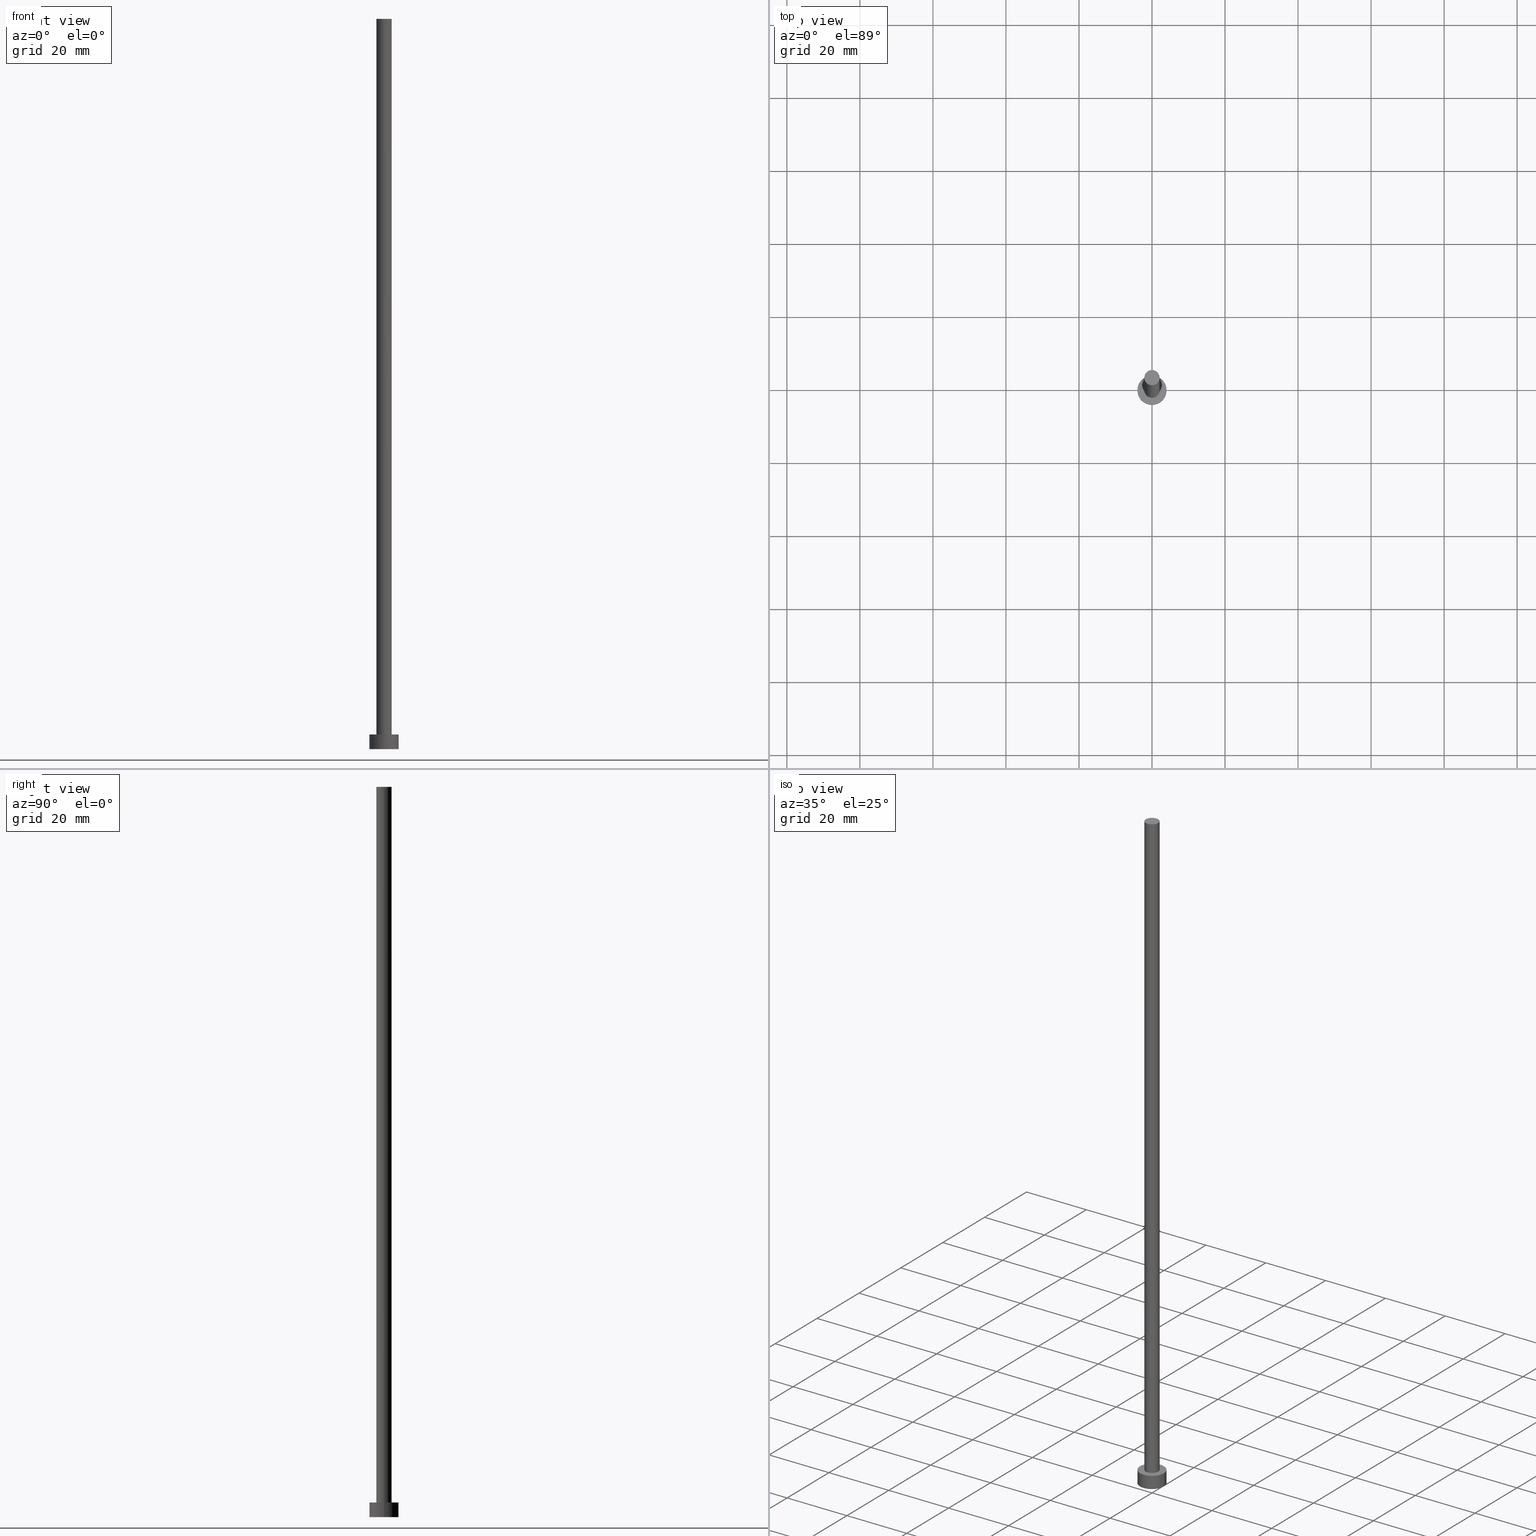
[diagram: canonical four-view strip — front | top / right | iso, engineering-drawing reading convention]
A machine part, canonical four-view strip (front | top / right | iso — engineering-drawing reading convention). The complete STEP part file that produces these views, byte-faithful:
ISO-10303-21;
HEADER;
FILE_DESCRIPTION (( 'STEP AP203' ),
    '1' );
FILE_NAME ('45b1.STEP',
    '2023-02-13T16:34:34',
    ( '' ),
    ( '' ),
    'SwSTEP 2.0',
    'SolidWorks 2019',
    '' );
FILE_SCHEMA (( 'CONFIG_CONTROL_DESIGN' ));
ENDSEC;

DATA;
#1 = ADVANCED_FACE ( 'NONE', ( #48 ), #65, .T. ) ;
#2 = ORIENTED_EDGE ( 'NONE', *, *, #150, .F. ) ;
#3 = PERSON_AND_ORGANIZATION ( #215, #194 ) ;
#4 = UNCERTAINTY_MEASURE_WITH_UNIT (LENGTH_MEASURE( 1.000000000000000082E-05 ), #96, 'distance_accuracy_value', 'NONE');
#5 = CARTESIAN_POINT ( 'NONE',  ( 2.100000000000000089, 2.571758278209441957E-16, 4.000000000000000000 ) ) ;
#6 = DIRECTION ( 'NONE',  ( -0.000000000000000000, -0.000000000000000000, -1.000000000000000000 ) ) ;
#7 = APPLICATION_PROTOCOL_DEFINITION ( 'international standard', 'config_control_design', 1994, #124 ) ;
#8 = CARTESIAN_POINT ( 'NONE',  ( 0.000000000000000000, 0.000000000000000000, 4.000000000000000000 ) ) ;
#9 = CIRCLE ( 'NONE', #240, 4.000000000000000000 ) ;
#10 = DIRECTION ( 'NONE',  ( 0.000000000000000000, 0.000000000000000000, 1.000000000000000000 ) ) ;
#11 = AXIS2_PLACEMENT_3D ( 'NONE', #255, #116, #74 ) ;
#12 = CARTESIAN_POINT ( 'NONE',  ( 0.000000000000000000, 0.000000000000000000, 4.000000000000000000 ) ) ;
#13 = EDGE_LOOP ( 'NONE', ( #17, #223 ) ) ;
#14 = CC_DESIGN_APPROVAL ( #211, ( #103 ) ) ;
#15 = SECURITY_CLASSIFICATION_LEVEL ( 'unclassified' ) ;
#16 = ADVANCED_FACE ( 'NONE', ( #66, #82 ), #192, .T. ) ;
#17 = ORIENTED_EDGE ( 'NONE', *, *, #227, .T. ) ;
#18 = APPROVAL_STATUS ( 'not_yet_approved' ) ;
#19 = ORIENTED_EDGE ( 'NONE', *, *, #156, .T. ) ;
#20 = DIRECTION ( 'NONE',  ( 1.000000000000000000, 0.000000000000000000, 0.000000000000000000 ) ) ;
#21 = ORIENTED_EDGE ( 'NONE', *, *, #97, .T. ) ;
#22 = DIRECTION ( 'NONE',  ( 0.000000000000000000, 0.000000000000000000, 1.000000000000000000 ) ) ;
#23 = ORIENTED_EDGE ( 'NONE', *, *, #87, .T. ) ;
#24 = DIRECTION ( 'NONE',  ( 0.000000000000000000, 0.000000000000000000, 1.000000000000000000 ) ) ;
#25 = APPROVAL_PERSON_ORGANIZATION ( #69, #245, #155 ) ;
#26 = EDGE_CURVE ( 'NONE', #118, #95, #142, .T. ) ;
#27 = CARTESIAN_POINT ( 'NONE',  ( -2.100000000000000089, 0.000000000000000000, 200.0000000000000000 ) ) ;
#28 = ADVANCED_BREP_SHAPE_REPRESENTATION ( '45b1', ( #217, #64 ), #54 ) ;
#29 = ORIENTED_EDGE ( 'NONE', *, *, #227, .F. ) ;
#30 = CARTESIAN_POINT ( 'NONE',  ( 0.000000000000000000, 0.000000000000000000, 0.000000000000000000 ) ) ;
#31 = EDGE_CURVE ( 'NONE', #58, #253, #131, .T. ) ;
#32 = DIRECTION ( 'NONE',  ( 0.000000000000000000, 0.000000000000000000, 1.000000000000000000 ) ) ;
#33 = CARTESIAN_POINT ( 'NONE',  ( -4.000000000000000000, 0.000000000000000000, 4.000000000000000000 ) ) ;
#34 = CARTESIAN_POINT ( 'NONE',  ( 0.000000000000000000, 0.000000000000000000, 200.0000000000000000 ) ) ;
#35 = ADVANCED_FACE ( 'NONE', ( #181 ), #52, .T. ) ;
#36 = VERTEX_POINT ( 'NONE', #126 ) ;
#37 = CIRCLE ( 'NONE', #90, 2.100000000000000089 ) ;
#38 = CC_DESIGN_PERSON_AND_ORGANIZATION_ASSIGNMENT ( #68, #158, ( #160 ) ) ;
#39 = CARTESIAN_POINT ( 'NONE',  ( -4.000000000000000000, 0.000000000000000000, 0.000000000000000000 ) ) ;
#40 = APPROVAL_DATE_TIME ( #144, #211 ) ;
#41 = LOCAL_TIME ( 17, 34, 34.00000000000000000, #162 ) ;
#42 = COORDINATED_UNIVERSAL_TIME_OFFSET ( 1, 0, .AHEAD. ) ;
#43 = VERTEX_POINT ( 'NONE', #174 ) ;
#44 = ADVANCED_FACE ( 'NONE', ( #154 ), #130, .F. ) ;
#45 = CARTESIAN_POINT ( 'NONE',  ( -2.100000000000000089, 0.000000000000000000, 200.0000000000000000 ) ) ;
#46 = ORIENTED_EDGE ( 'NONE', *, *, #156, .F. ) ;
#47 = DIRECTION ( 'NONE',  ( -0.000000000000000000, -0.000000000000000000, -1.000000000000000000 ) ) ;
#48 = FACE_OUTER_BOUND ( 'NONE', #170, .T. ) ;
#49 = EDGE_LOOP ( 'NONE', ( #137, #29, #23, #176 ) ) ;
#50 = DIRECTION ( 'NONE',  ( -1.000000000000000000, 0.000000000000000000, 0.000000000000000000 ) ) ;
#51 = CC_DESIGN_DATE_AND_TIME_ASSIGNMENT ( #107, #88, ( #103 ) ) ;
#52 = CYLINDRICAL_SURFACE ( 'NONE', #226, 2.100000000000000089 ) ;
#53 = CIRCLE ( 'NONE', #119, 2.100000000000000089 ) ;
#54 =( GEOMETRIC_REPRESENTATION_CONTEXT ( 3 ) GLOBAL_UNCERTAINTY_ASSIGNED_CONTEXT ( ( #4 ) ) GLOBAL_UNIT_ASSIGNED_CONTEXT ( ( #96, #188, #61 ) ) REPRESENTATION_CONTEXT ( 'NONE', 'WORKASPACE' ) );
#55 = EDGE_LOOP ( 'NONE', ( #179, #183 ) ) ;
#56 = FACE_OUTER_BOUND ( 'NONE', #89, .T. ) ;
#57 = CC_DESIGN_SECURITY_CLASSIFICATION ( #173, ( #160 ) ) ;
#58 = VERTEX_POINT ( 'NONE', #109 ) ;
#59 = DIRECTION ( 'NONE',  ( 0.000000000000000000, 0.000000000000000000, 1.000000000000000000 ) ) ;
#60 = DATE_AND_TIME ( #163, #78 ) ;
#61 =( NAMED_UNIT ( * ) SI_UNIT ( $, .STERADIAN. ) SOLID_ANGLE_UNIT ( ) );
#62 = EDGE_CURVE ( 'NONE', #36, #149, #53, .T. ) ;
#63 = LINE ( 'NONE', #117, #232 ) ;
#64 = AXIS2_PLACEMENT_3D ( 'NONE', #141, #120, #203 ) ;
#65 = CYLINDRICAL_SURFACE ( 'NONE', #209, 4.000000000000000000 ) ;
#66 = FACE_BOUND ( 'NONE', #229, .T. ) ;
#67 = PERSON_AND_ORGANIZATION_ROLE ( 'design_owner' ) ;
#68 = PERSON_AND_ORGANIZATION ( #215, #194 ) ;
#69 = PERSON_AND_ORGANIZATION ( #215, #194 ) ;
#70 = CLOSED_SHELL ( 'NONE', ( #35, #1, #231, #16, #44, #92, #196 ) ) ;
#71 = ORIENTED_EDGE ( 'NONE', *, *, #31, .F. ) ;
#72 = APPROVAL_ROLE ( '' ) ;
#73 = COORDINATED_UNIVERSAL_TIME_OFFSET ( 1, 0, .AHEAD. ) ;
#74 = DIRECTION ( 'NONE',  ( 1.000000000000000000, 0.000000000000000000, 0.000000000000000000 ) ) ;
#75 = PERSON_AND_ORGANIZATION ( #215, #194 ) ;
#76 = ORIENTED_EDGE ( 'NONE', *, *, #26, .F. ) ;
#77 = DIRECTION ( 'NONE',  ( -0.000000000000000000, -0.000000000000000000, -1.000000000000000000 ) ) ;
#78 = LOCAL_TIME ( 17, 34, 34.00000000000000000, #186 ) ;
#79 = DIRECTION ( 'NONE',  ( 1.000000000000000000, 0.000000000000000000, -0.000000000000000000 ) ) ;
#80 = DIRECTION ( 'NONE',  ( 0.000000000000000000, 0.000000000000000000, 1.000000000000000000 ) ) ;
#81 = EDGE_CURVE ( 'NONE', #43, #58, #9, .T. ) ;
#82 = FACE_OUTER_BOUND ( 'NONE', #55, .T. ) ;
#83 = PERSON_AND_ORGANIZATION ( #215, #194 ) ;
#84 = PERSON_AND_ORGANIZATION ( #215, #194 ) ;
#85 = DIRECTION ( 'NONE',  ( -0.000000000000000000, -0.000000000000000000, -1.000000000000000000 ) ) ;
#86 = DIRECTION ( 'NONE',  ( 1.000000000000000000, 0.000000000000000000, -0.000000000000000000 ) ) ;
#87 = EDGE_CURVE ( 'NONE', #149, #118, #91, .T. ) ;
#88 = DATE_TIME_ROLE ( 'creation_date' ) ;
#89 = EDGE_LOOP ( 'NONE', ( #2, #193, #147, #134 ) ) ;
#90 = AXIS2_PLACEMENT_3D ( 'NONE', #242, #222, #159 ) ;
#91 = LINE ( 'NONE', #27, #157 ) ;
#92 = ADVANCED_FACE ( 'NONE', ( #177 ), #251, .T. ) ;
#93 = AXIS2_PLACEMENT_3D ( 'NONE', #138, #24, #143 ) ;
#94 = LOCAL_TIME ( 17, 34, 34.00000000000000000, #201 ) ;
#95 = VERTEX_POINT ( 'NONE', #5 ) ;
#96 =( LENGTH_UNIT ( ) NAMED_UNIT ( * ) SI_UNIT ( .MILLI., .METRE. ) );
#97 = EDGE_CURVE ( 'NONE', #95, #118, #37, .T. ) ;
#98 = ORIENTED_EDGE ( 'NONE', *, *, #62, .F. ) ;
#99 = APPLICATION_PROTOCOL_DEFINITION ( 'international standard', 'config_control_design', 1994, #168 ) ;
#100 = AXIS2_PLACEMENT_3D ( 'NONE', #167, #213, #136 ) ;
#101 = DIRECTION ( 'NONE',  ( -0.000000000000000000, -0.000000000000000000, -1.000000000000000000 ) ) ;
#102 = CARTESIAN_POINT ( 'NONE',  ( 0.000000000000000000, 0.000000000000000000, 200.0000000000000000 ) ) ;
#103 = PRODUCT_DEFINITION ( 'NEZN�M�', '', #160, #198 ) ;
#104 = PERSON_AND_ORGANIZATION_ROLE ( 'classification_officer' ) ;
#105 = LOCAL_TIME ( 17, 34, 34.00000000000000000, #42 ) ;
#106 = CARTESIAN_POINT ( 'NONE',  ( 0.000000000000000000, 0.000000000000000000, 4.000000000000000000 ) ) ;
#107 = DATE_AND_TIME ( #237, #94 ) ;
#108 = APPROVAL_DATE_TIME ( #146, #133 ) ;
#109 = CARTESIAN_POINT ( 'NONE',  ( -4.000000000000000000, 0.000000000000000000, 4.000000000000000000 ) ) ;
#110 = ORIENTED_EDGE ( 'NONE', *, *, #125, .T. ) ;
#111 = DIRECTION ( 'NONE',  ( 1.000000000000000000, 0.000000000000000000, 0.000000000000000000 ) ) ;
#112 = AXIS2_PLACEMENT_3D ( 'NONE', #204, #59, #79 ) ;
#113 = AXIS2_PLACEMENT_3D ( 'NONE', #30, #32, #212 ) ;
#114 = ORIENTED_EDGE ( 'NONE', *, *, #81, .F. ) ;
#115 = CIRCLE ( 'NONE', #145, 4.000000000000000000 ) ;
#116 = DIRECTION ( 'NONE',  ( 0.000000000000000000, 0.000000000000000000, 1.000000000000000000 ) ) ;
#117 = CARTESIAN_POINT ( 'NONE',  ( 2.100000000000000089, 2.571758278209441957E-16, 200.0000000000000000 ) ) ;
#118 = VERTEX_POINT ( 'NONE', #200 ) ;
#119 = AXIS2_PLACEMENT_3D ( 'NONE', #247, #152, #111 ) ;
#120 = DIRECTION ( 'NONE',  ( 0.000000000000000000, 0.000000000000000000, 1.000000000000000000 ) ) ;
#121 = VECTOR ( 'NONE', #101, 1000.000000000000000 ) ;
#122 = DIRECTION ( 'NONE',  ( 1.000000000000000000, 0.000000000000000000, 0.000000000000000000 ) ) ;
#123 = APPROVAL_PERSON_ORGANIZATION ( #83, #211, #72 ) ;
#124 = APPLICATION_CONTEXT ( 'configuration controlled 3d designs of mechanical parts and assemblies' ) ;
#125 = EDGE_CURVE ( 'NONE', #36, #95, #63, .T. ) ;
#126 = CARTESIAN_POINT ( 'NONE',  ( 2.100000000000000089, 2.571758278209441957E-16, 200.0000000000000000 ) ) ;
#127 = DIRECTION ( 'NONE',  ( 1.000000000000000000, 0.000000000000000000, 0.000000000000000000 ) ) ;
#128 = CIRCLE ( 'NONE', #233, 2.100000000000000089 ) ;
#129 = EDGE_CURVE ( 'NONE', #58, #43, #153, .T. ) ;
#130 = PLANE ( 'NONE',  #113 ) ;
#131 = LINE ( 'NONE', #33, #206 ) ;
#132 = FACE_OUTER_BOUND ( 'NONE', #13, .T. ) ;
#133 = APPROVAL ( #189, 'NEUR�EN�' ) ;
#134 = ORIENTED_EDGE ( 'NONE', *, *, #208, .T. ) ;
#135 = ORIENTED_EDGE ( 'NONE', *, *, #87, .F. ) ;
#136 = DIRECTION ( 'NONE',  ( -1.000000000000000000, 0.000000000000000000, 0.000000000000000000 ) ) ;
#137 = ORIENTED_EDGE ( 'NONE', *, *, #125, .F. ) ;
#138 = CARTESIAN_POINT ( 'NONE',  ( 0.000000000000000000, 0.000000000000000000, 0.000000000000000000 ) ) ;
#139 = CALENDAR_DATE ( 2023, 13, 2 ) ;
#140 = APPROVAL_DATE_TIME ( #60, #245 ) ;
#141 = CARTESIAN_POINT ( 'NONE',  ( 0.000000000000000000, 0.000000000000000000, 0.000000000000000000 ) ) ;
#142 = CIRCLE ( 'NONE', #185, 2.100000000000000089 ) ;
#143 = DIRECTION ( 'NONE',  ( 1.000000000000000000, 0.000000000000000000, 0.000000000000000000 ) ) ;
#144 = DATE_AND_TIME ( #210, #180 ) ;
#145 = AXIS2_PLACEMENT_3D ( 'NONE', #165, #22, #122 ) ;
#146 = DATE_AND_TIME ( #205, #105 ) ;
#147 = ORIENTED_EDGE ( 'NONE', *, *, #31, .T. ) ;
#148 = DIRECTION ( 'NONE',  ( 0.000000000000000000, 0.000000000000000000, 1.000000000000000000 ) ) ;
#149 = VERTEX_POINT ( 'NONE', #45 ) ;
#150 = EDGE_CURVE ( 'NONE', #43, #184, #239, .T. ) ;
#151 = EDGE_LOOP ( 'NONE', ( #234, #46 ) ) ;
#152 = DIRECTION ( 'NONE',  ( 0.000000000000000000, 0.000000000000000000, 1.000000000000000000 ) ) ;
#153 = CIRCLE ( 'NONE', #11, 4.000000000000000000 ) ;
#154 = FACE_OUTER_BOUND ( 'NONE', #151, .T. ) ;
#155 = APPROVAL_ROLE ( '' ) ;
#156 = EDGE_CURVE ( 'NONE', #184, #253, #115, .T. ) ;
#157 = VECTOR ( 'NONE', #85, 1000.000000000000000 ) ;
#158 = PERSON_AND_ORGANIZATION_ROLE ( 'design_supplier' ) ;
#159 = DIRECTION ( 'NONE',  ( 1.000000000000000000, 0.000000000000000000, 0.000000000000000000 ) ) ;
#160 = PRODUCT_DEFINITION_FORMATION_WITH_SPECIFIED_SOURCE ( 'LIBOVOLN�', '', #178, .NOT_KNOWN. ) ;
#161 = PLANE ( 'NONE',  #112 ) ;
#162 = COORDINATED_UNIVERSAL_TIME_OFFSET ( 1, 0, .AHEAD. ) ;
#163 = CALENDAR_DATE ( 2023, 13, 2 ) ;
#164 = CARTESIAN_POINT ( 'NONE',  ( 4.000000000000000000, 4.898587196589412829E-16, 0.000000000000000000 ) ) ;
#165 = CARTESIAN_POINT ( 'NONE',  ( 0.000000000000000000, 0.000000000000000000, 0.000000000000000000 ) ) ;
#166 = DATE_AND_TIME ( #139, #41 ) ;
#167 = CARTESIAN_POINT ( 'NONE',  ( 0.000000000000000000, 0.000000000000000000, 4.000000000000000000 ) ) ;
#168 = APPLICATION_CONTEXT ( 'configuration controlled 3d designs of mechanical parts and assemblies' ) ;
#169 = PERSON_AND_ORGANIZATION ( #215, #194 ) ;
#170 = EDGE_LOOP ( 'NONE', ( #114, #249, #19, #71 ) ) ;
#171 = CC_DESIGN_PERSON_AND_ORGANIZATION_ASSIGNMENT ( #75, #218, ( #103 ) ) ;
#172 = APPROVAL_STATUS ( 'not_yet_approved' ) ;
#173 = SECURITY_CLASSIFICATION ( '', '', #15 ) ;
#174 = CARTESIAN_POINT ( 'NONE',  ( 4.000000000000000000, 4.898587196589412829E-16, 4.000000000000000000 ) ) ;
#175 = CARTESIAN_POINT ( 'NONE',  ( 0.000000000000000000, 0.000000000000000000, 4.000000000000000000 ) ) ;
#176 = ORIENTED_EDGE ( 'NONE', *, *, #26, .T. ) ;
#177 = FACE_OUTER_BOUND ( 'NONE', #49, .T. ) ;
#178 = PRODUCT ( '45b1', '45b1', '', ( #230 ) ) ;
#179 = ORIENTED_EDGE ( 'NONE', *, *, #129, .T. ) ;
#180 = LOCAL_TIME ( 17, 34, 34.00000000000000000, #73 ) ;
#181 = FACE_OUTER_BOUND ( 'NONE', #246, .T. ) ;
#182 = PERSON_AND_ORGANIZATION ( #215, #194 ) ;
#183 = ORIENTED_EDGE ( 'NONE', *, *, #81, .T. ) ;
#184 = VERTEX_POINT ( 'NONE', #164 ) ;
#185 = AXIS2_PLACEMENT_3D ( 'NONE', #175, #148, #127 ) ;
#186 = COORDINATED_UNIVERSAL_TIME_OFFSET ( 1, 0, .AHEAD. ) ;
#187 = DIRECTION ( 'NONE',  ( -0.000000000000000000, -0.000000000000000000, -1.000000000000000000 ) ) ;
#188 =( NAMED_UNIT ( * ) PLANE_ANGLE_UNIT ( ) SI_UNIT ( $, .RADIAN. ) );
#189 = APPROVAL_STATUS ( 'not_yet_approved' ) ;
#190 = AXIS2_PLACEMENT_3D ( 'NONE', #225, #187, #220 ) ;
#191 = APPROVAL_PERSON_ORGANIZATION ( #169, #133, #243 ) ;
#192 = PLANE ( 'NONE',  #228 ) ;
#193 = ORIENTED_EDGE ( 'NONE', *, *, #129, .F. ) ;
#194 = ORGANIZATION ( 'NEUR�EN�', 'NEUR�EN�', '' ) ;
#195 = DIRECTION ( 'NONE',  ( 0.000000000000000000, 0.000000000000000000, 1.000000000000000000 ) ) ;
#196 = ADVANCED_FACE ( 'NONE', ( #132 ), #161, .T. ) ;
#197 = DIRECTION ( 'NONE',  ( -0.000000000000000000, -0.000000000000000000, -1.000000000000000000 ) ) ;
#198 = DESIGN_CONTEXT ( 'detailed design', #124, 'design' ) ;
#199 = PRODUCT_RELATED_PRODUCT_CATEGORY ( 'detail', '', ( #178 ) ) ;
#200 = CARTESIAN_POINT ( 'NONE',  ( -2.100000000000000089, 0.000000000000000000, 4.000000000000000000 ) ) ;
#201 = COORDINATED_UNIVERSAL_TIME_OFFSET ( 1, 0, .AHEAD. ) ;
#202 = CYLINDRICAL_SURFACE ( 'NONE', #100, 4.000000000000000000 ) ;
#203 = DIRECTION ( 'NONE',  ( 1.000000000000000000, 0.000000000000000000, 0.000000000000000000 ) ) ;
#204 = CARTESIAN_POINT ( 'NONE',  ( 0.000000000000000000, 0.000000000000000000, 200.0000000000000000 ) ) ;
#205 = CALENDAR_DATE ( 2023, 13, 2 ) ;
#206 = VECTOR ( 'NONE', #197, 1000.000000000000000 ) ;
#207 = DIRECTION ( 'NONE',  ( 1.000000000000000000, 0.000000000000000000, 0.000000000000000000 ) ) ;
#208 = EDGE_CURVE ( 'NONE', #253, #184, #214, .T. ) ;
#209 = AXIS2_PLACEMENT_3D ( 'NONE', #106, #6, #244 ) ;
#210 = CALENDAR_DATE ( 2023, 13, 2 ) ;
#211 = APPROVAL ( #172, 'NEUR�EN�' ) ;
#212 = DIRECTION ( 'NONE',  ( 1.000000000000000000, 0.000000000000000000, -0.000000000000000000 ) ) ;
#213 = DIRECTION ( 'NONE',  ( -0.000000000000000000, -0.000000000000000000, -1.000000000000000000 ) ) ;
#214 = CIRCLE ( 'NONE', #93, 4.000000000000000000 ) ;
#215 = PERSON ( 'NEUR�EN�', 'NEUR�EN�', 'NEUR�EN�', ('NEUR�EN�'), ('NEUR�EN�'), ('NEUR�EN�') ) ;
#216 = CC_DESIGN_PERSON_AND_ORGANIZATION_ASSIGNMENT ( #84, #67, ( #178 ) ) ;
#217 = MANIFOLD_SOLID_BREP ( 'P�idat vysunut�m3', #70 ) ;
#218 = PERSON_AND_ORGANIZATION_ROLE ( 'creator' ) ;
#219 = CC_DESIGN_PERSON_AND_ORGANIZATION_ASSIGNMENT ( #3, #248, ( #160 ) ) ;
#220 = DIRECTION ( 'NONE',  ( -1.000000000000000000, 0.000000000000000000, 0.000000000000000000 ) ) ;
#221 = CC_DESIGN_APPROVAL ( #245, ( #160 ) ) ;
#222 = DIRECTION ( 'NONE',  ( 0.000000000000000000, 0.000000000000000000, 1.000000000000000000 ) ) ;
#223 = ORIENTED_EDGE ( 'NONE', *, *, #62, .T. ) ;
#224 = PRODUCT_DEFINITION_SHAPE ( 'NONE', 'NONE',  #103 ) ;
#225 = CARTESIAN_POINT ( 'NONE',  ( 0.000000000000000000, 0.000000000000000000, 200.0000000000000000 ) ) ;
#226 = AXIS2_PLACEMENT_3D ( 'NONE', #34, #47, #50 ) ;
#227 = EDGE_CURVE ( 'NONE', #149, #36, #128, .T. ) ;
#228 = AXIS2_PLACEMENT_3D ( 'NONE', #8, #10, #86 ) ;
#229 = EDGE_LOOP ( 'NONE', ( #76, #254 ) ) ;
#230 = MECHANICAL_CONTEXT ( 'NONE', #168, 'mechanical' ) ;
#231 = ADVANCED_FACE ( 'NONE', ( #56 ), #202, .T. ) ;
#232 = VECTOR ( 'NONE', #77, 1000.000000000000000 ) ;
#233 = AXIS2_PLACEMENT_3D ( 'NONE', #102, #80, #20 ) ;
#234 = ORIENTED_EDGE ( 'NONE', *, *, #208, .F. ) ;
#235 = CC_DESIGN_PERSON_AND_ORGANIZATION_ASSIGNMENT ( #182, #104, ( #173 ) ) ;
#236 = CARTESIAN_POINT ( 'NONE',  ( 4.000000000000000000, 4.898587196589412829E-16, 4.000000000000000000 ) ) ;
#237 = CALENDAR_DATE ( 2023, 13, 2 ) ;
#238 = DATE_TIME_ROLE ( 'classification_date' ) ;
#239 = LINE ( 'NONE', #236, #121 ) ;
#240 = AXIS2_PLACEMENT_3D ( 'NONE', #12, #195, #207 ) ;
#241 = CC_DESIGN_DATE_AND_TIME_ASSIGNMENT ( #166, #238, ( #173 ) ) ;
#242 = CARTESIAN_POINT ( 'NONE',  ( 0.000000000000000000, 0.000000000000000000, 4.000000000000000000 ) ) ;
#243 = APPROVAL_ROLE ( '' ) ;
#244 = DIRECTION ( 'NONE',  ( -1.000000000000000000, 0.000000000000000000, 0.000000000000000000 ) ) ;
#245 = APPROVAL ( #18, 'NEUR�EN�' ) ;
#246 = EDGE_LOOP ( 'NONE', ( #98, #110, #21, #135 ) ) ;
#247 = CARTESIAN_POINT ( 'NONE',  ( 0.000000000000000000, 0.000000000000000000, 200.0000000000000000 ) ) ;
#248 = PERSON_AND_ORGANIZATION_ROLE ( 'creator' ) ;
#249 = ORIENTED_EDGE ( 'NONE', *, *, #150, .T. ) ;
#250 = SHAPE_DEFINITION_REPRESENTATION ( #224, #28 ) ;
#251 = CYLINDRICAL_SURFACE ( 'NONE', #190, 2.100000000000000089 ) ;
#252 = CC_DESIGN_APPROVAL ( #133, ( #173 ) ) ;
#253 = VERTEX_POINT ( 'NONE', #39 ) ;
#254 = ORIENTED_EDGE ( 'NONE', *, *, #97, .F. ) ;
#255 = CARTESIAN_POINT ( 'NONE',  ( 0.000000000000000000, 0.000000000000000000, 4.000000000000000000 ) ) ;
ENDSEC;
END-ISO-10303-21;
